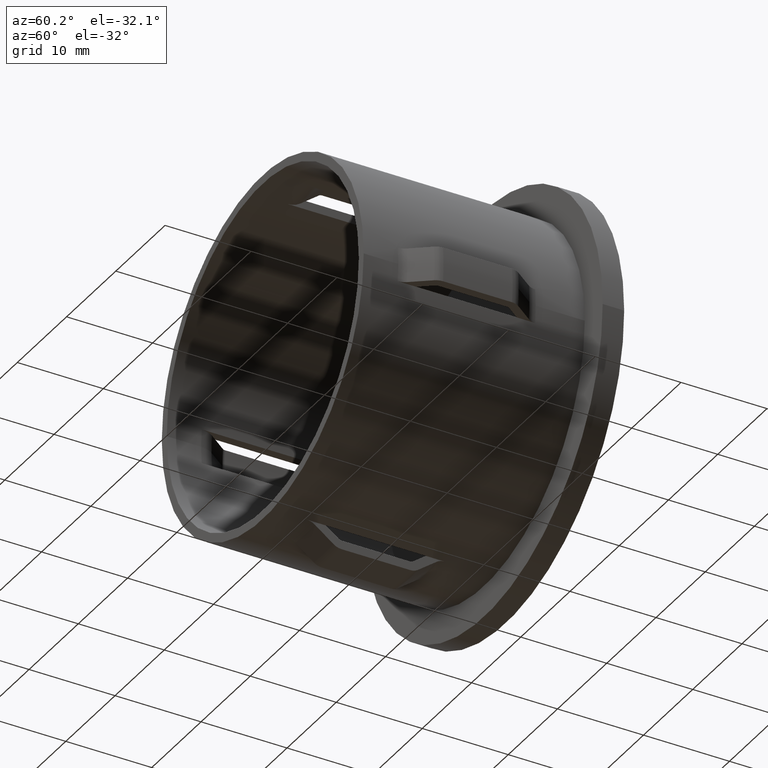
[diagram: clean part render]
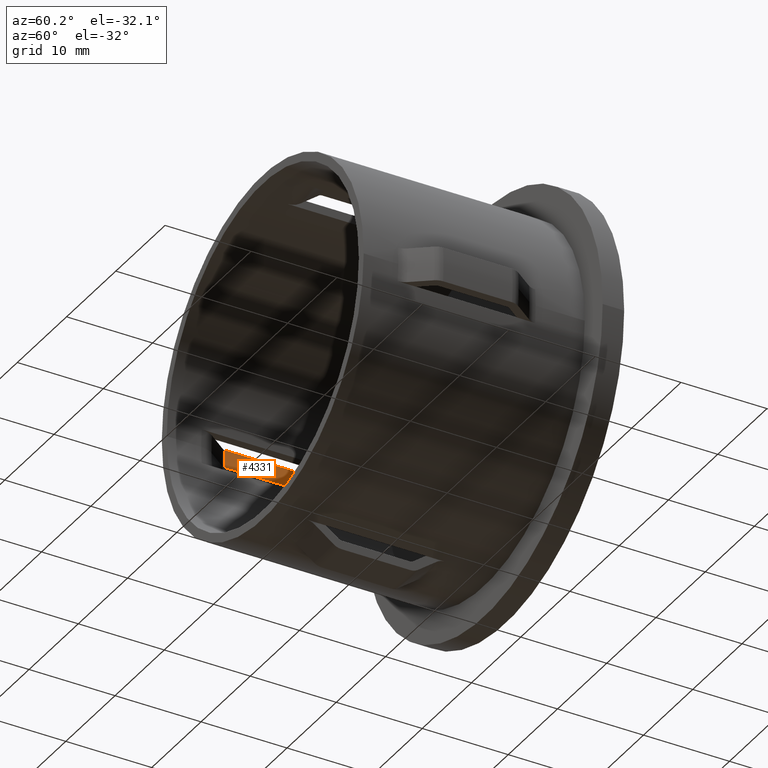
[diagram: same view with one face highlighted and labeled with its STEP entity id]
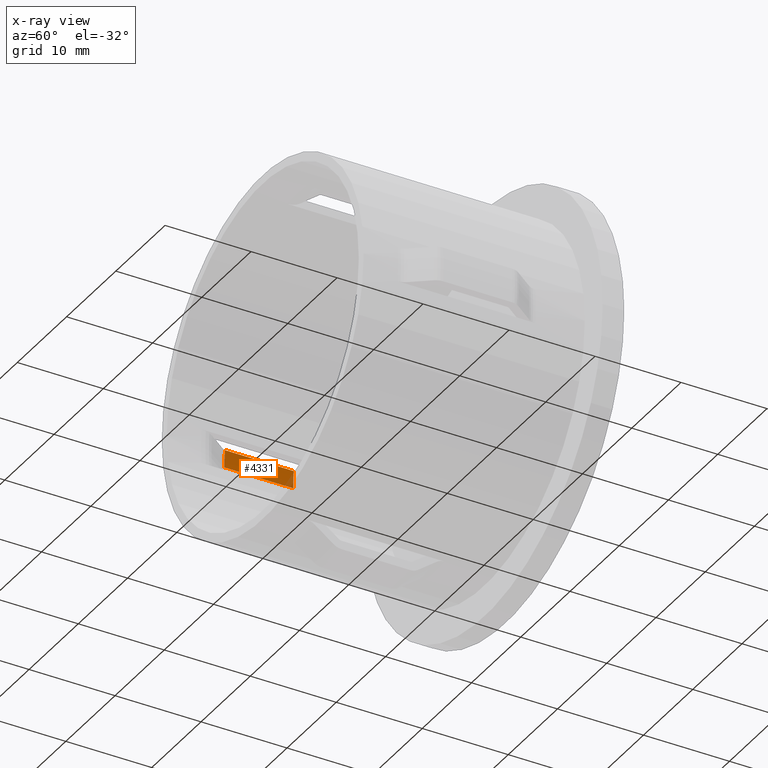
[diagram: x-ray of the same camera — body ghosted, the highlighted face saturated]
A machine part, auxiliary view. The second image highlights one B-rep face of the part: STEP entity #4331.
The next image is the same camera in x-ray: the body ghosted, the highlighted face saturated — about 5% of this face is hidden behind the body in this view.
In plain terms, the highlighted cylindrical surface (partial cylindrical patch) has radius 21.75 mm, axis along (-0, 1, -0).
Its self-contained STEP definition (entity closure, byte-faithful):
#1112 = EDGE_LOOP ( 'NONE', ( #7071, #16677, #4929, #16257 ) ) ;
#1155 = CARTESIAN_POINT ( 'NONE',  ( -21.74999999999999300, 15.99999999999999300, 0.0000000000000000000 ) ) ;
#1412 = CIRCLE ( 'NONE', #11100, 21.75000000000000400 ) ;
#1437 = EDGE_CURVE ( 'NONE', #12143, #16669, #8772, .T. ) ;
#3090 = CARTESIAN_POINT ( 'NONE',  ( -21.75000000000000000, 28.19999999999999600, 0.0000000000000000000 ) ) ;
#3937 = FACE_OUTER_BOUND ( 'NONE', #1112, .T. ) ;
#4003 = CARTESIAN_POINT ( 'NONE',  ( 1.846767373114211700E-015, 15.99999999999999600, 0.0000000000000000000 ) ) ;
#4163 = EDGE_CURVE ( 'NONE', #12143, #12048, #1412, .T. ) ;
#4267 = DIRECTION ( 'NONE',  ( 1.714505518806297100E-016, -1.000000000000000000, 0.0000000000000000000 ) ) ;
#4331 = ADVANCED_FACE ( 'NONE', ( #3937 ), #11020, .F. ) ;
#4929 = ORIENTED_EDGE ( 'NONE', *, *, #13670, .T. ) ;
#5123 = VERTEX_POINT ( 'NONE', #11068 ) ;
#5760 = LINE ( 'NONE', #14887, #12865 ) ;
#6257 = VECTOR ( 'NONE', #8270, 1000.000000000000000 ) ;
#6412 = DIRECTION ( 'NONE',  ( -1.000000000000000000, -1.595148023886718800E-016, 0.0000000000000000000 ) ) ;
#6927 = CARTESIAN_POINT ( 'NONE',  ( -2.449293598294708900E-016, 28.19999999999999900, 0.0000000000000000000 ) ) ;
#7066 = CARTESIAN_POINT ( 'NONE',  ( -21.65785077056354200, 7.999999999999992900, 2.000000000000000000 ) ) ;
#7071 = ORIENTED_EDGE ( 'NONE', *, *, #4163, .F. ) ;
#7238 = CARTESIAN_POINT ( 'NONE',  ( -21.75000000000000000, 7.999999999999989300, 0.0000000000000000000 ) ) ;
#7623 = EDGE_CURVE ( 'NONE', #5123, #12048, #5760, .T. ) ;
#7815 = DIRECTION ( 'NONE',  ( -1.714505518806297100E-016, 1.000000000000000000, -0.0000000000000000000 ) ) ;
#8270 = DIRECTION ( 'NONE',  ( -1.714505518806297100E-016, 1.000000000000000000, -0.0000000000000000000 ) ) ;
#8772 = LINE ( 'NONE', #3090, #6257 ) ;
#8932 = CIRCLE ( 'NONE', #16656, 21.74999999999999600 ) ;
#9164 = CARTESIAN_POINT ( 'NONE',  ( 3.218371788159250600E-015, 7.999999999999992900, 0.0000000000000000000 ) ) ;
#10875 = AXIS2_PLACEMENT_3D ( 'NONE', #6927, #16457, #16392 ) ;
#11020 = CYLINDRICAL_SURFACE ( 'NONE', #10875, 21.75000000000000000 ) ;
#11068 = CARTESIAN_POINT ( 'NONE',  ( -21.65785077056354500, 15.99999999999980600, 2.000000000000000000 ) ) ;
#11100 = AXIS2_PLACEMENT_3D ( 'NONE', #9164, #7815, #6412 ) ;
#12048 = VERTEX_POINT ( 'NONE', #7066 ) ;
#12143 = VERTEX_POINT ( 'NONE', #7238 ) ;
#12865 = VECTOR ( 'NONE', #4267, 1000.000000000000000 ) ;
#13344 = DIRECTION ( 'NONE',  ( -1.000000000000000000, -1.595148023886719300E-016, 0.0000000000000000000 ) ) ;
#13670 = EDGE_CURVE ( 'NONE', #16669, #5123, #8932, .T. ) ;
#14887 = CARTESIAN_POINT ( 'NONE',  ( -21.65785077056354500, 28.19999999999999600, 2.000000000000000000 ) ) ;
#16257 = ORIENTED_EDGE ( 'NONE', *, *, #7623, .T. ) ;
#16392 = DIRECTION ( 'NONE',  ( -1.000000000000000000, -1.595148023886719100E-016, 0.0000000000000000000 ) ) ;
#16457 = DIRECTION ( 'NONE',  ( -1.714505518806297100E-016, 1.000000000000000000, -0.0000000000000000000 ) ) ;
#16656 = AXIS2_PLACEMENT_3D ( 'NONE', #4003, #17237, #13344 ) ;
#16669 = VERTEX_POINT ( 'NONE', #1155 ) ;
#16677 = ORIENTED_EDGE ( 'NONE', *, *, #1437, .T. ) ;
#17237 = DIRECTION ( 'NONE',  ( -1.714505518806297100E-016, 1.000000000000000000, -0.0000000000000000000 ) ) ;